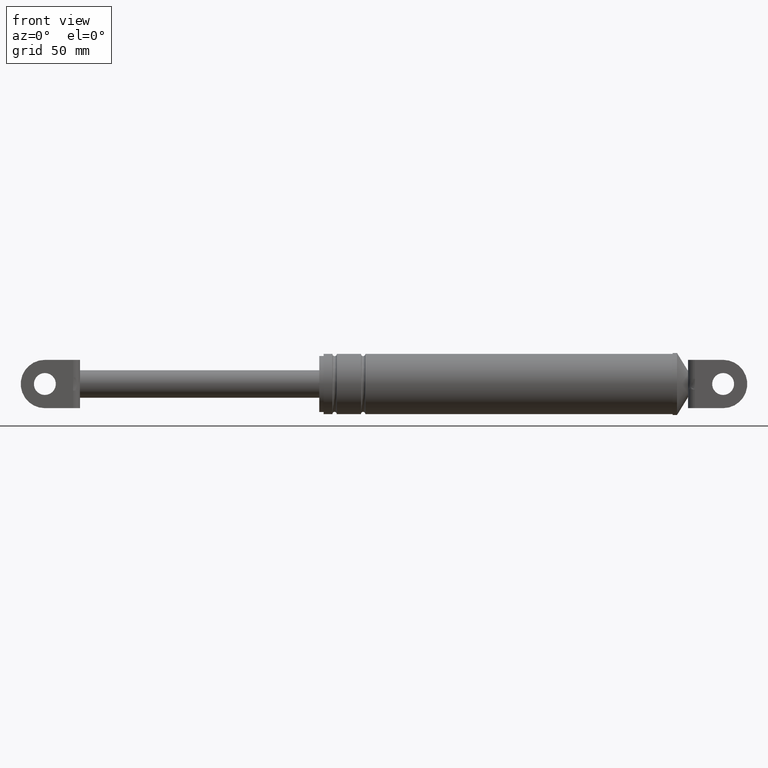
[diagram: clean part render]
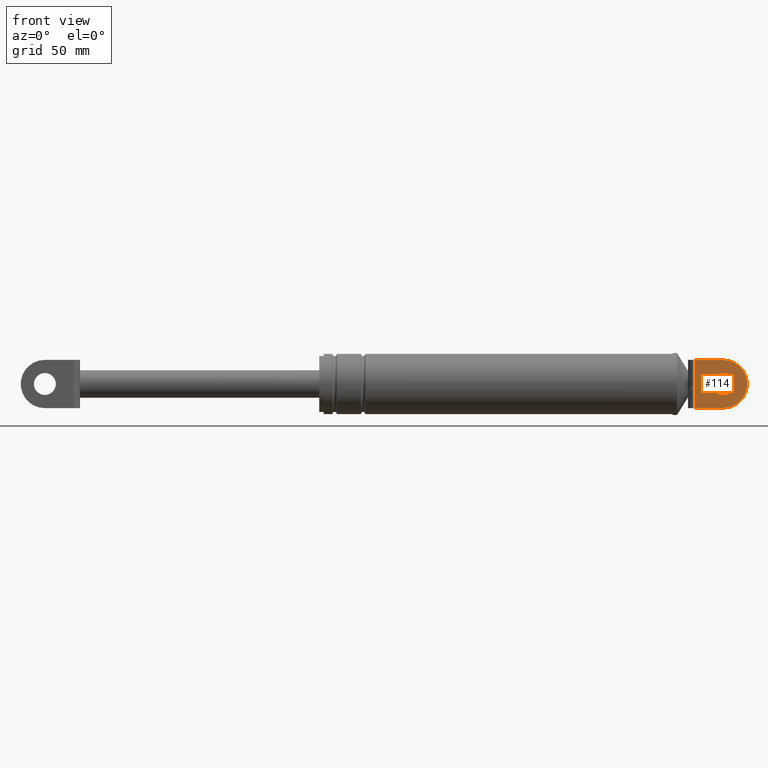
[diagram: same view with one face highlighted and labeled with its STEP entity id]
A machine part, front view. The second image highlights one B-rep face of the part: STEP entity #114.
In plain terms, the highlighted planar face has unit normal (0, 1, 0).
Its self-contained STEP definition (entity closure, byte-faithful):
#114=ADVANCED_FACE('',(#197,#198),#196,.F.);
#196=PLANE('',#891);
#197=FACE_OUTER_BOUND('',#892,.T.);
#198=FACE_BOUND('',#893,.T.);
#888=CARTESIAN_POINT('',(3.60051956430E+002,-8.69999700000E+000,1.66244333906E+002));
#889=DIRECTION('',(0.00000000000E+000,1.00000000000E+000,0.00000000000E+000));
#890=DIRECTION('',(0.00000000000E+000,0.00000000000E+000,1.00000000000E+000));
#891=AXIS2_PLACEMENT_3D('',#888,#889,#890);
#892=EDGE_LOOP('',(#1404,#1405,#1406,#1407,#1408,#1409));
#893=EDGE_LOOP('',(#1410,#1411));
#1404=ORIENTED_EDGE('',*,*,#1716,.F.);
#1405=ORIENTED_EDGE('',*,*,#1717,.T.);
#1406=ORIENTED_EDGE('',*,*,#1713,.T.);
#1407=ORIENTED_EDGE('',*,*,#1718,.T.);
#1408=ORIENTED_EDGE('',*,*,#1719,.T.);
#1409=ORIENTED_EDGE('',*,*,#1720,.T.);
#1410=ORIENTED_EDGE('',*,*,#1721,.F.);
#1411=ORIENTED_EDGE('',*,*,#1722,.F.);
#1713=EDGE_CURVE('',#1900,#1893,#1901,.T.);
#1716=EDGE_CURVE('',#1920,#1921,#1922,.T.);
#1717=EDGE_CURVE('',#1920,#1900,#1928,.T.);
#1718=EDGE_CURVE('',#1893,#1934,#1935,.T.);
#1719=EDGE_CURVE('',#1934,#1941,#1942,.T.);
#1720=EDGE_CURVE('',#1941,#1921,#1948,.T.);
#1721=EDGE_CURVE('',#1954,#1955,#1956,.T.);
#1722=EDGE_CURVE('',#1955,#1954,#1962,.T.);
#1893=VERTEX_POINT('',#2925);
#1900=VERTEX_POINT('',#2930);
#1901=(BOUNDED_CURVE() B_SPLINE_CURVE(3,(#2931,#2932,#2933,#2934,#2935,#2936,#2937,#2938,#2939,#2940),.UNSPECIFIED.,.F.,.F.) B_SPLINE_CURVE_WITH_KNOTS((4,2,2,2,4),(0.00000000000E+000,1.19890467989E-003,2.39780935978E-003,3.59671403966E-003,4.79561871955E-003),.UNSPECIFIED.) CURVE() GEOMETRIC_REPRESENTATION_ITEM() RATIONAL_B_SPLINE_CURVE((1.00000000000E+000,1.00000000000E+000,1.00000000000E+000,1.00000000000E+000,1.00000000000E+000,1.00000000000E+000,1.00000000000E+000,1.00000000000E+000,1.00000000000E+000,1.00000000000E+000)) REPRESENTATION_ITEM('') );
#1920=VERTEX_POINT('',#2950);
#1921=VERTEX_POINT('',#2951);
#1922=LINE('',#2952,#2953);
#1928=LINE('',#2955,#2956);
#1934=VERTEX_POINT('',#2958);
#1935=LINE('',#2959,#2960);
#1941=VERTEX_POINT('',#2962);
#1942=LINE('',#2963,#2964);
#1948=CIRCLE('',#2969,1.10000000000E+001);
#1954=VERTEX_POINT('',#2970);
#1955=VERTEX_POINT('',#2971);
#1956=CIRCLE('',#2975,5.00000000000E+000);
#1962=CIRCLE('',#2979,5.00000000000E+000);
#2925=CARTESIAN_POINT('',(3.62475196154E+002,-8.69999700000E+000,1.77046412416E+002));
#2930=CARTESIAN_POINT('',(3.62475196154E+002,-8.69999700000E+000,1.81842257701E+002));
#2931=CARTESIAN_POINT('',(3.62475196154E+002,-8.69999700000E+000,1.81842257701E+002));
#2932=CARTESIAN_POINT('',(3.62475196154E+002,-8.69999700000E+000,1.81442601615E+002));
#2933=CARTESIAN_POINT('',(3.62463570809E+002,-8.69999700000E+000,1.81043065255E+002));
#2934=CARTESIAN_POINT('',(3.62443711882E+002,-8.69999700000E+000,1.80243957604E+002));
#2935=CARTESIAN_POINT('',(3.62435896301E+002,-8.69999700000E+000,1.79844382009E+002));
#2936=CARTESIAN_POINT('',(3.62435887314E+002,-8.69999700000E+000,1.79045069929E+002));
#2937=CARTESIAN_POINT('',(3.62443697986E+002,-8.69999700000E+000,1.78645311722E+002));
#2938=CARTESIAN_POINT('',(3.62463561458E+002,-8.69999700000E+000,1.77845941123E+002));
#2939=CARTESIAN_POINT('',(3.62475196154E+002,-8.69999700000E+000,1.77446288544E+002));
#2940=CARTESIAN_POINT('',(3.62475196154E+002,-8.69999700000E+000,1.77046412416E+002));
#2950=CARTESIAN_POINT('',(3.62475196154E+002,-8.69999700000E+000,1.90444335058E+002));
#2951=CARTESIAN_POINT('',(3.75275195194E+002,-8.69999700000E+000,1.90444335058E+002));
#2952=CARTESIAN_POINT('',(3.62475196154E+002,-8.69999700000E+000,1.90444335058E+002));
#2953=VECTOR('',#2954,1.27999990401E+001);
#2954=DIRECTION('',(1.00000000000E+000,0.00000000000E+000,0.00000000000E+000));
#2955=CARTESIAN_POINT('',(3.62475196154E+002,-8.69999700000E+000,1.90444335058E+002));
#2956=VECTOR('',#2957,8.60207735738E+000);
#2957=DIRECTION('',(0.00000000000E+000,0.00000000000E+000,-1.00000000000E+000));
#2958=CARTESIAN_POINT('',(3.62475196154E+002,-8.69999700000E+000,1.68444335058E+002));
#2959=CARTESIAN_POINT('',(3.62475196154E+002,-8.69999700000E+000,1.77046412416E+002));
#2960=VECTOR('',#2961,8.60207735738E+000);
#2961=DIRECTION('',(0.00000000000E+000,0.00000000000E+000,-1.00000000000E+000));
#2962=CARTESIAN_POINT('',(3.75275195194E+002,-8.69999700000E+000,1.68444335058E+002));
#2963=CARTESIAN_POINT('',(3.62475196154E+002,-8.69999700000E+000,1.68444335058E+002));
#2964=VECTOR('',#2965,1.27999990401E+001);
#2965=DIRECTION('',(1.00000000000E+000,0.00000000000E+000,0.00000000000E+000));
#2966=CARTESIAN_POINT('',(3.75275196154E+002,-8.69999700000E+000,1.79444335058E+002));
#2967=DIRECTION('',(-0.00000000000E+000,-1.00000000000E+000,0.00000000000E+000));
#2968=DIRECTION('',(-8.72664517201E-008,0.00000000000E+000,1.00000000000E+000));
#2969=AXIS2_PLACEMENT_3D('',#2966,#2967,#2968);
#2970=CARTESIAN_POINT('',(3.75275196154E+002,-8.69999700000E+000,1.74444335058E+002));
#2971=CARTESIAN_POINT('',(3.75275196154E+002,-8.69999700000E+000,1.84444335058E+002));
#2972=CARTESIAN_POINT('',(3.75275196154E+002,-8.69999700000E+000,1.79444335058E+002));
#2973=DIRECTION('',(-0.00000000000E+000,-1.00000000000E+000,0.00000000000E+000));
#2974=DIRECTION('',(-1.22460635382E-016,0.00000000000E+000,1.00000000000E+000));
#2975=AXIS2_PLACEMENT_3D('',#2972,#2973,#2974);
#2976=CARTESIAN_POINT('',(3.75275196154E+002,-8.69999700000E+000,1.79444335058E+002));
#2977=DIRECTION('',(-0.00000000000E+000,-1.00000000000E+000,0.00000000000E+000));
#2978=DIRECTION('',(-1.22460635382E-016,0.00000000000E+000,1.00000000000E+000));
#2979=AXIS2_PLACEMENT_3D('',#2976,#2977,#2978);